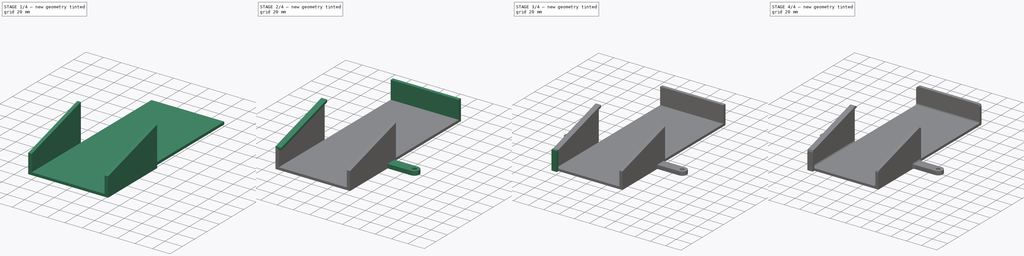
[diagram: build sequence overview — one tinted view per stage of 4, left to right]
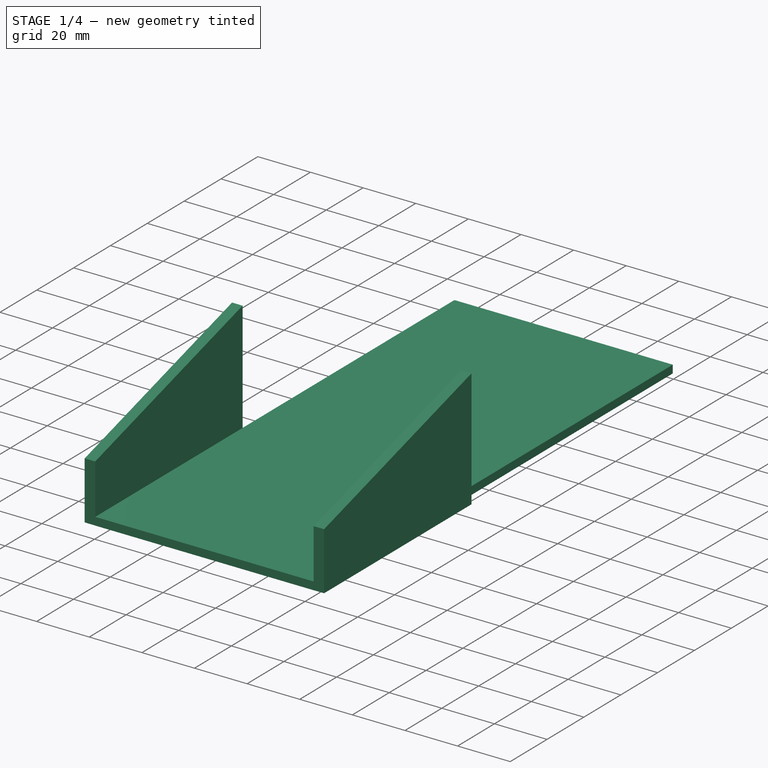
[diagram: stage 1 of 4 — iso view after this stage's code; geometry added in this stage tinted green]
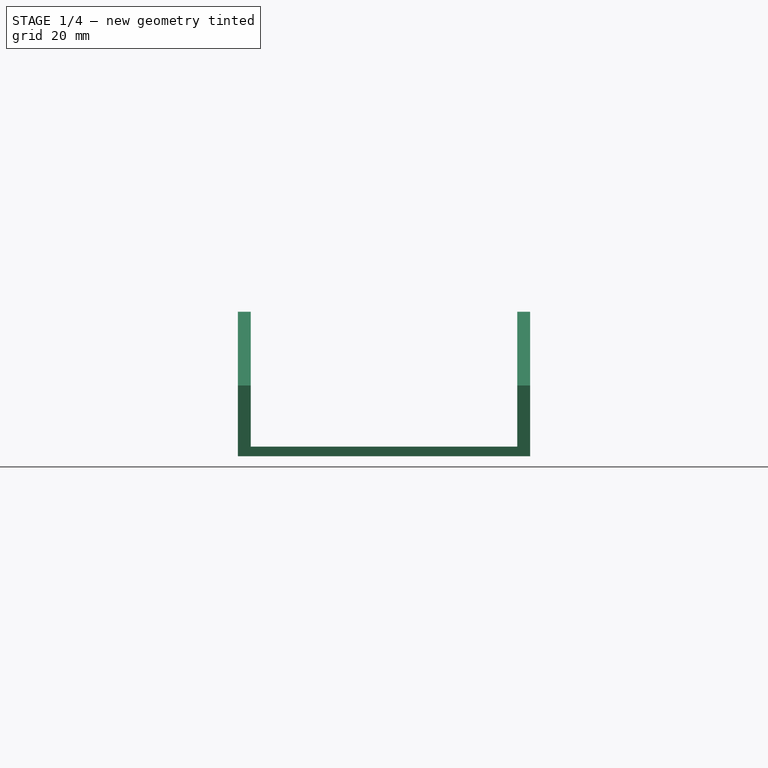
[diagram: stage 1 of 4 — front view after this stage's code; geometry added in this stage tinted green]
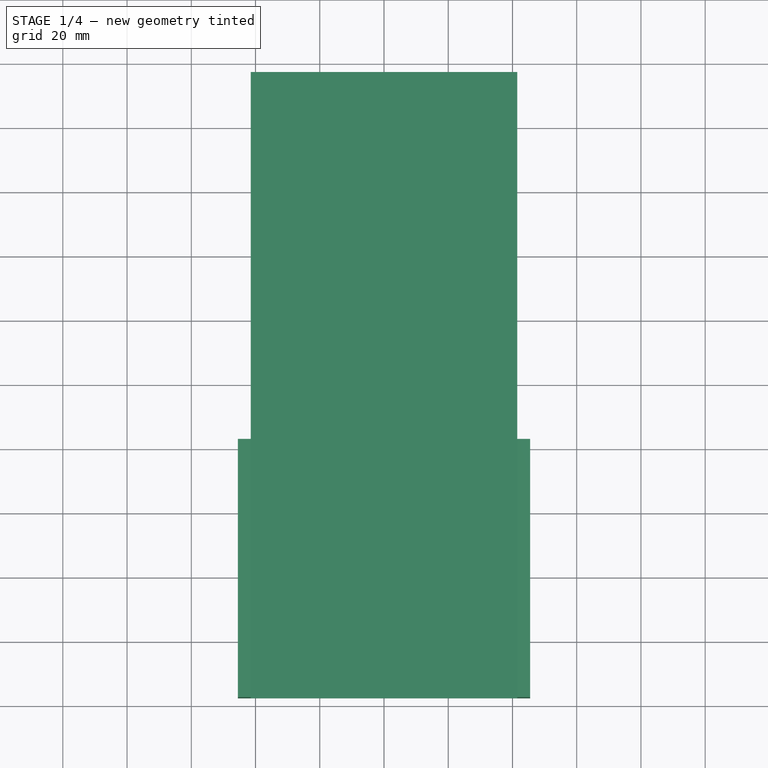
[diagram: stage 1 of 4 — top view after this stage's code; geometry added in this stage tinted green]
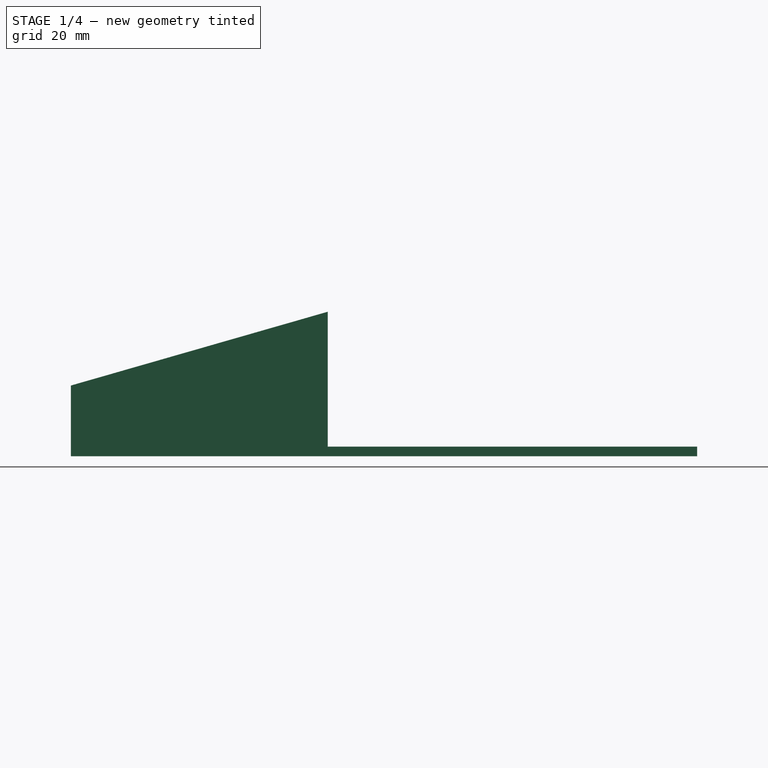
[diagram: stage 1 of 4 — right view after this stage's code; geometry added in this stage tinted green]
FCSTD DOCUMENT  (FreeCAD 1.1R20260414 (Git shallow))
Label: Unnamed
License: All rights reserved
LicenseURL: https://en.wikipedia.org/wiki/All_rights_reserved
objects: Sketcher::SketchObject×6, PartDesign::Pad×6, PartDesign::Fillet×4, PartDesign::Mirrored×2, App::Point×1, PartDesign::Body×1
note: 47 computed .brp shape members not serialized (recipe doc carries the construction recipe); baked Part::Feature solids carry a one-line shape summary decoded from their .brp

FEATURE [App::Point] Origin001
  Role = Origin
FEATURE [Sketcher::SketchObject] Sketch
  ArcFitTolerance = 1e-06
  AttachmentSupport = -> [Origin]
  ExternalTypes = [0]
  FullyConstrained = true
  MakeInternals = false
  MapMode = 5
  _ExternalGeoVersion = 1
  sketch-geometry (5):
    g0: LineSegment StartX=-41.5 StartY=-97.5 StartZ=0 EndX=41.5 EndY=-97.5 EndZ=0
    g1: LineSegment StartX=41.5 StartY=-97.5 StartZ=0 EndX=41.5 EndY=97.5 EndZ=0
    g2: LineSegment StartX=41.5 StartY=97.5 StartZ=0 EndX=-41.5 EndY=97.5 EndZ=0
    g3: LineSegment StartX=-41.5 StartY=97.5 StartZ=0 EndX=-41.5 EndY=-97.5 EndZ=0
    g4: GeomPoint [constr] X=0 Y=0 Z=0
  constraints (12):
    c: Coincident(g0,g1)
    c: Coincident(g1,g2)
    c: Coincident(g2,g3)
    c: Coincident(g3,g0)
    c: Horizontal(g0)
    c: Horizontal(g2)
    c: Vertical(g1)
    c: Vertical(g3)
    c: Symmetric(g2,g0,g4)
    c: Distance(g1,g3) = 83
    c: Distance(g0,g2) = 195
    c: Coincident(g4,g-1)
FEATURE [PartDesign::Pad] Pad
  Direction = (0,0,1)
  Length = 3
  Length2 = 10
  Profile = -> Sketch
  ReferenceAxis = -> Sketch [N_Axis]
  Refine = true
  SideType = 0
  Suppressed = false
  Type = 0
  Type2 = 0
FEATURE [Sketcher::SketchObject] Sketch001
  ArcFitTolerance = 1e-06
  AttachmentSupport = -> [Pad]
  ExternalTypes = [0,0]
  FullyConstrained = true
  MakeInternals = false
  MapMode = 5
  Placement = pos=(-41.5,0,0) rot=(0.57735,-0.57735,-0.57735;2.0944rad)
  _ExternalGeoVersion = 1
  sketch-geometry (4):
    g0: LineSegment StartX=97.5 StartY=0.02 StartZ=0 EndX=97.5 EndY=22.02 EndZ=0
    g1: LineSegment StartX=17.5 StartY=0.02 StartZ=0 EndX=17.5 EndY=45 EndZ=0
    g2: LineSegment StartX=17.5 StartY=45 StartZ=0 EndX=97.5 EndY=22.02 EndZ=0
    g3: LineSegment StartX=17.5 StartY=0.02 StartZ=0 EndX=97.5 EndY=0.02 EndZ=0
  constraints (12):
    c: Distance(g0) = 22
    c: Vertical(g0)
    c: Vertical(g1)
    c: Coincident(g2,g1)
    c: Coincident(g2,g0)
    c: Distance(g0,g-1) = 22.02
    c: Coincident(g3,g1)
    c: Coincident(g3,g0)
    c: Distance(g0,g1) = 80
    c: Distance(g-2,g0) = 97.5
    c: Distance(g1,g-1) = 45
    c: Distance(g1,g1) = 44.98
FEATURE [PartDesign::Pad] Pad001
  BaseFeature = -> Pad
  Direction = (-1,0,0)
  Length = 4
  Length2 = 10
  Profile = -> Sketch001
  ReferenceAxis = -> Sketch001 [N_Axis]
  Refine = true
  SideType = 0
  Suppressed = false
  Type = 0
  Type2 = 0
FEATURE [PartDesign::Mirrored] Mirrored
  BaseFeature = -> Pad001
  MirrorPlane = -> YZ_Plane
  Originals = -> [Pad001]
  Refine = true
  Suppressed = false
  TransformMode = 0
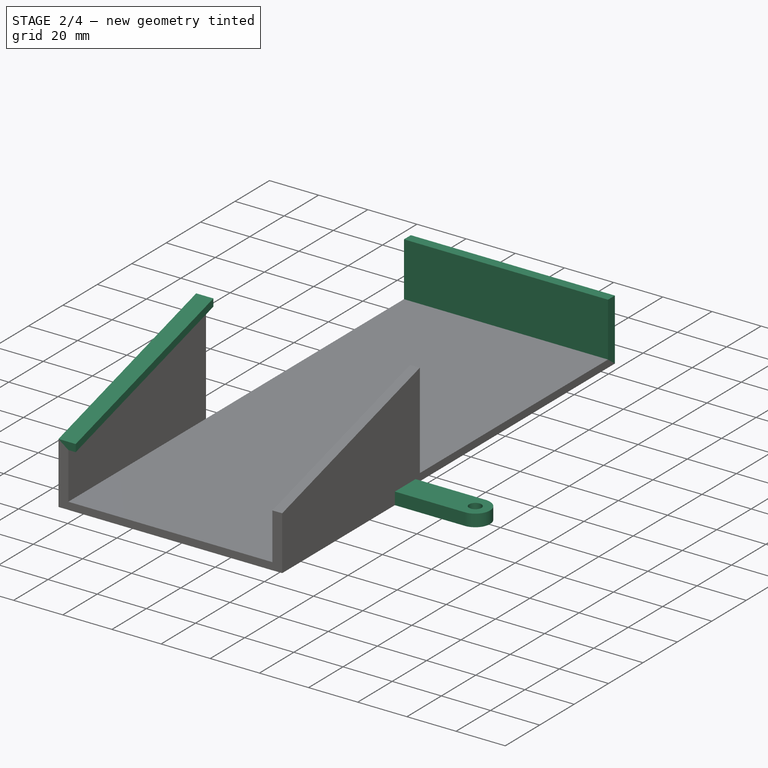
[diagram: stage 2 of 4 — iso view after this stage's code; geometry added in this stage tinted green]
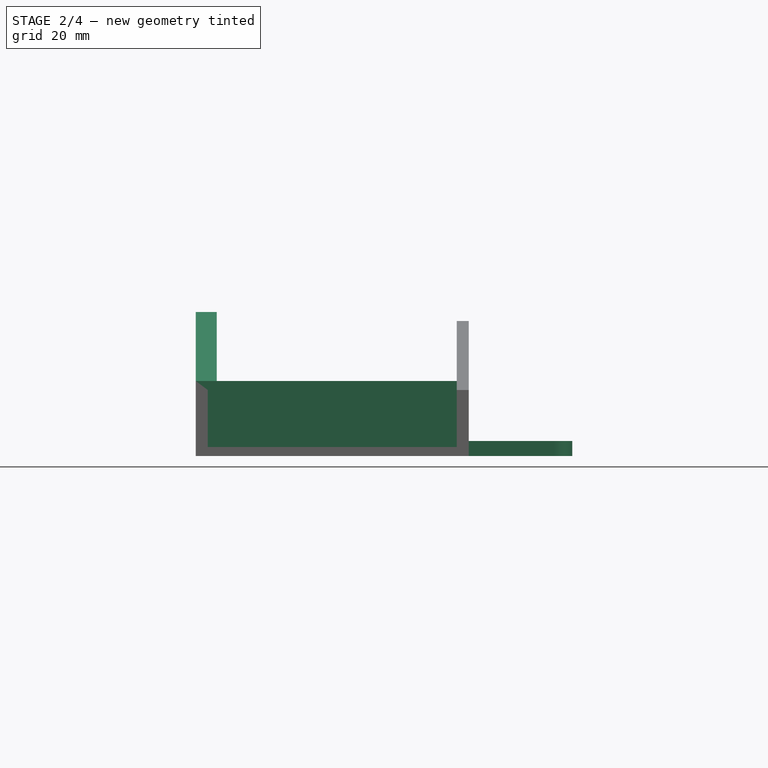
[diagram: stage 2 of 4 — front view after this stage's code; geometry added in this stage tinted green]
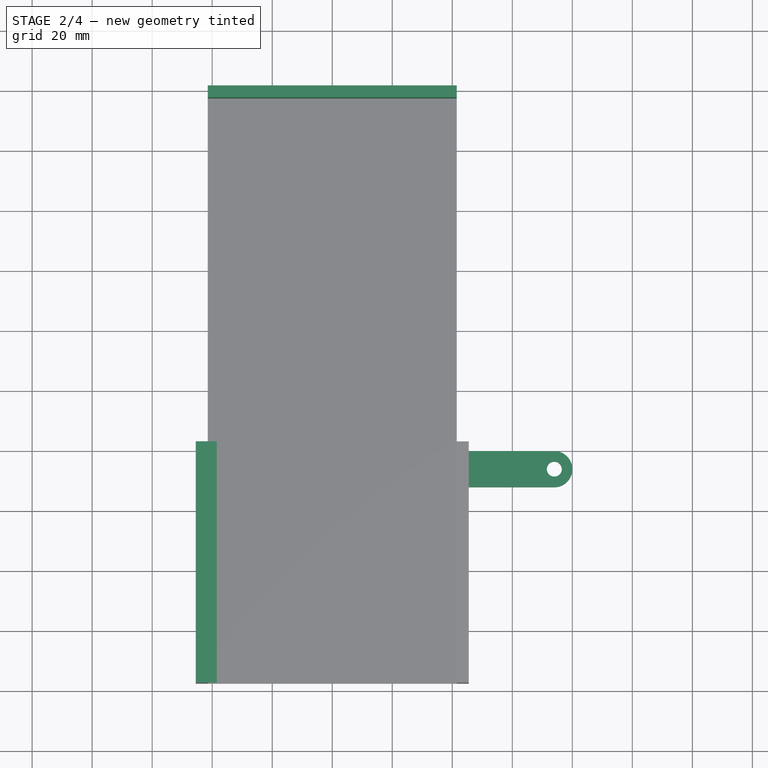
[diagram: stage 2 of 4 — top view after this stage's code; geometry added in this stage tinted green]
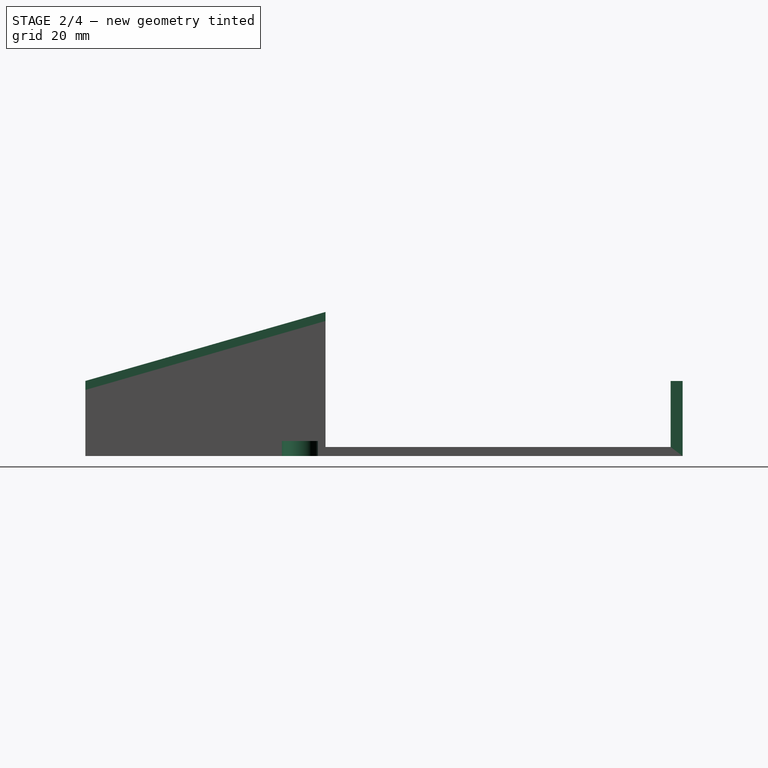
[diagram: stage 2 of 4 — right view after this stage's code; geometry added in this stage tinted green]
FEATURE [Sketcher::SketchObject] Sketch002
  ArcFitTolerance = 1e-06
  AttachmentSupport = -> [Mirrored]
  ExternalTypes = [0,0]
  FullyConstrained = true
  MakeInternals = false
  MapMode = 5
  Placement = pos=(-45.5,0,0) rot=(0.57735,-0.57735,-0.57735;2.0944rad)
  _ExternalGeoVersion = 1
  sketch-geometry (4):
    g0: LineSegment StartX=97.5 StartY=22.02 StartZ=0 EndX=97.5 EndY=25.02 EndZ=0
    g1: LineSegment StartX=17.5 StartY=45 StartZ=0 EndX=17.5 EndY=48 EndZ=0
    g2: LineSegment StartX=17.5 StartY=48 StartZ=0 EndX=97.5 EndY=25.02 EndZ=0
    g3: LineSegment StartX=97.5 StartY=22.02 StartZ=0 EndX=17.5 EndY=45 EndZ=0
  constraints (12):
    c: Vertical(g1)
    c: Coincident(g1,g2)
    c: Coincident(g2,g0)
    c: Coincident(g0,g3)
    c: Coincident(g3,g1)
    c: Vertical(g0)
    c: Distance(g1,g1) = 3
    c: Distance(g0,g0) = 3
    c: DistanceY(g-1,g1) = 45
    c: DistanceY(g-1,g0) = 22.02
    c: Distance(g0,g-2) = 97.5
    c: DistanceX(g1,g0) = 80
FEATURE [PartDesign::Pad] Pad002
  BaseFeature = -> Mirrored
  Direction = (-1,0,0)
  Length = 7
  Length2 = 10
  Profile = -> Sketch002
  ReferenceAxis = -> Sketch002 [N_Axis]
  Refine = true
  Reversed = true
  SideType = 0
  Suppressed = false
  Type = 0
  Type2 = 0
FEATURE [Sketcher::SketchObject] Sketch003
  ArcFitTolerance = 1e-06
  AttachmentSupport = -> [Pad002]
  ExternalTypes = [0]
  FullyConstrained = true
  MakeInternals = false
  MapMode = 5
  Placement = pos=(0,97.5,0) rot=(0,0.707107,0.707107;3.14159rad)
  _ExternalGeoVersion = 1
  sketch-geometry (4):
    g0: LineSegment StartX=-41.5 StartY=-1.4e-15 StartZ=0 EndX=41.5 EndY=-1.4e-15 EndZ=0
    g1: LineSegment StartX=41.5 StartY=-1.4e-15 StartZ=0 EndX=41.5 EndY=25 EndZ=0
    g2: LineSegment StartX=41.5 StartY=25 StartZ=0 EndX=-41.5 EndY=25 EndZ=0
    g3: LineSegment StartX=-41.5 StartY=-1.4e-15 StartZ=0 EndX=-41.5 EndY=25 EndZ=0
  constraints (12):
    c: Coincident(g0,g1)
    c: Coincident(g1,g2)
    c: Vertical(g1)
    c: Horizontal(g0)
    c: Horizontal(g2)
    c: Distance(g2,g1) = 83
    c: Distance(g0,g2) = 25
    c: Coincident(g3,g0)
    c: Coincident(g3,g2)
    c: Vertical(g3)
    c: Distance(g-2,g3) = 41.5
    c: Distance(g-1,g2) = 25
FEATURE [PartDesign::Pad] Pad003
  BaseFeature = -> Pad002
  Direction = (0,1,-2e-16)
  Length = 4
  Length2 = 10
  Profile = -> Sketch003
  ReferenceAxis = -> Sketch003 [N_Axis]
  Refine = true
  SideType = 0
  Suppressed = false
  Type = 0
  Type2 = 0
FEATURE [Sketcher::SketchObject] Sketch005
  ArcFitTolerance = 1e-06
  AttachmentSupport = -> [Origin]
  ExternalTypes = [0]
  FullyConstrained = true
  MakeInternals = false
  MapMode = 5
  _ExternalGeoVersion = 1
  sketch-geometry (5):
    g0: LineSegment StartX=44 StartY=-20.02 StartZ=0 EndX=44 EndY=-32.02 EndZ=0
    g1: LineSegment StartX=44 StartY=-32.02 StartZ=0 EndX=74 EndY=-32.02 EndZ=0
    g2: LineSegment StartX=74 StartY=-20.02 StartZ=0 EndX=44 EndY=-20.02 EndZ=0
    g3: ArcOfCircle CenterX=74 CenterY=-26.02 CenterZ=0 NormalX=0 NormalY=0 NormalZ=1 AngleXU=0 Radius=6 StartAngle=4.71239 EndAngle=7.85398
    g4: Circle CenterX=74 CenterY=-26.02 CenterZ=0 NormalX=0 NormalY=0 NormalZ=1 AngleXU=0 Radius=2.5
  constraints (14):
    c: Coincident(g0,g1)
    c: Coincident(g2,g0)
    c: Vertical(g0)
    c: Horizontal(g1)
    c: Horizontal(g2)
    c: Distance(g0,g2) = 30
    c: Distance(g1,g2) = 12
    c: Distance(g-2,g0) = 44
    c: Tangent(g1,g3) = -1.5708
    c: Coincident(g3,g2)
    c: Angle(g3) = 3.14159
    c: Diameter(g4) = 5
    c: Coincident(g4,g3)
    c: Distance(g-1,g2) = 20.02
FEATURE [PartDesign::Pad] Pad005
  BaseFeature = -> Pad003
  Direction = (0,0,1)
  Length = 5
  Length2 = 10
  Profile = -> Sketch005
  ReferenceAxis = -> Sketch005 [N_Axis]
  Refine = true
  SideType = 0
  Suppressed = false
  Type = 0
  Type2 = 0
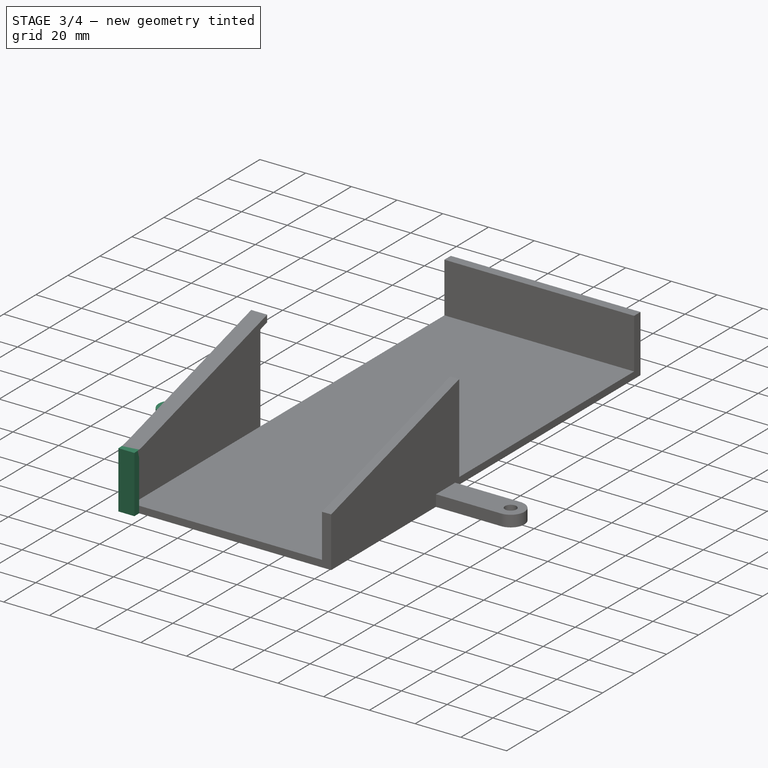
[diagram: stage 3 of 4 — iso view after this stage's code; geometry added in this stage tinted green]
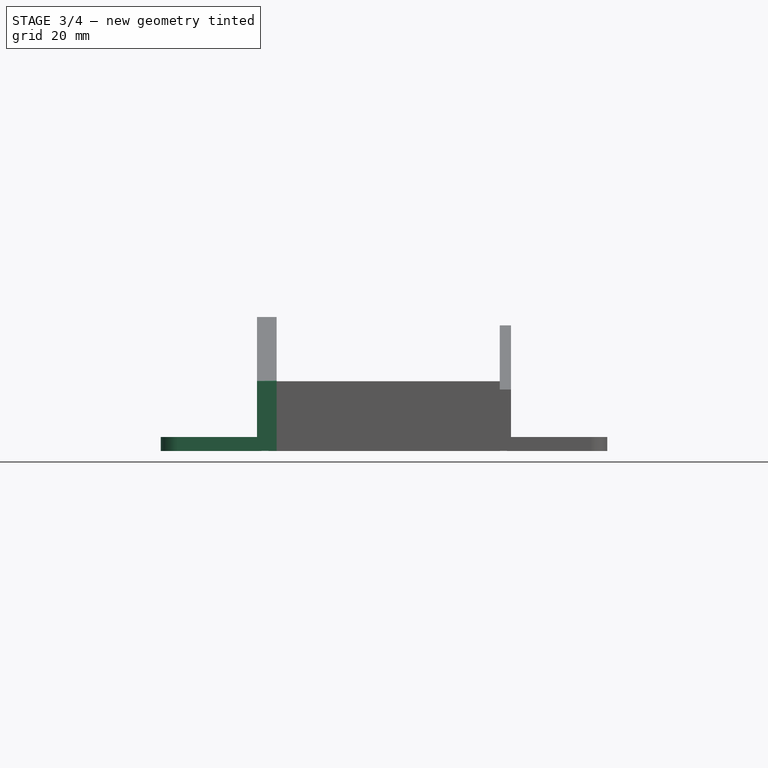
[diagram: stage 3 of 4 — front view after this stage's code; geometry added in this stage tinted green]
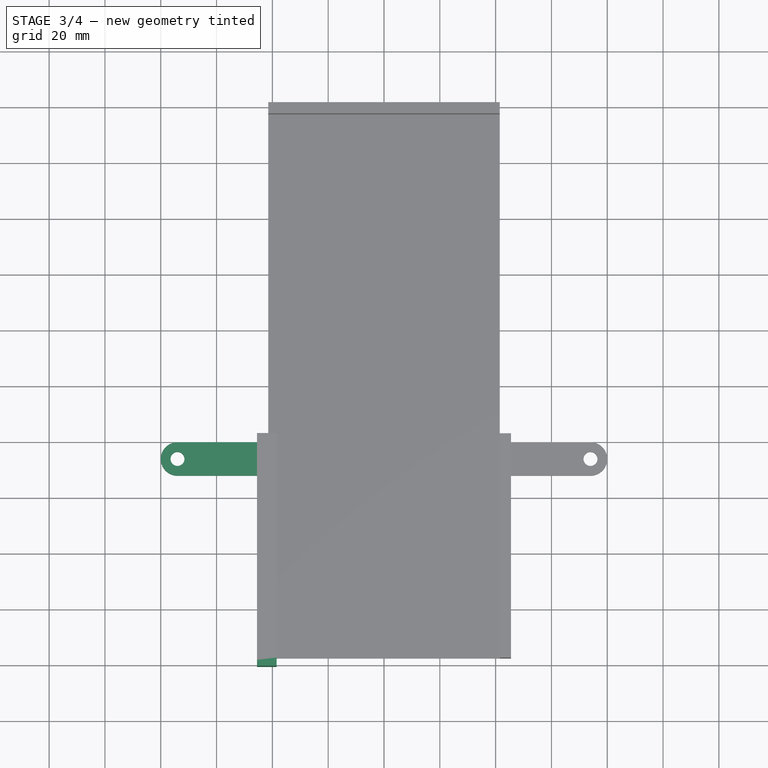
[diagram: stage 3 of 4 — top view after this stage's code; geometry added in this stage tinted green]
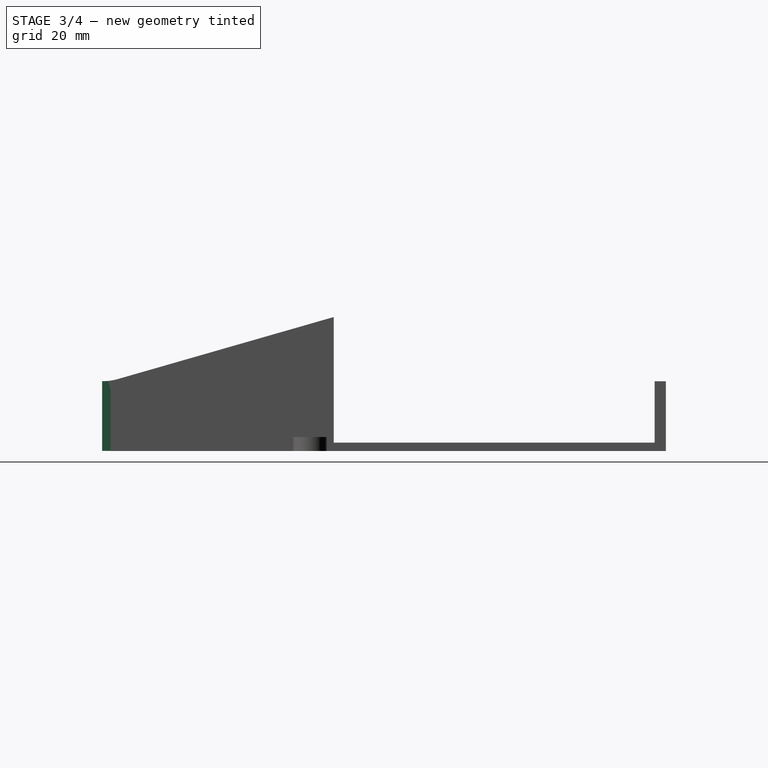
[diagram: stage 3 of 4 — right view after this stage's code; geometry added in this stage tinted green]
FEATURE [PartDesign::Mirrored] Mirrored001
  BaseFeature = -> Pad005
  MirrorPlane = -> Sketch005 [V_Axis]
  Originals = -> [Pad005]
  Refine = true
  Suppressed = false
  TransformMode = 0
FEATURE [Sketcher::SketchObject] Sketch006
  ArcFitTolerance = 1e-06
  AttachmentSupport = -> [Pad003]
  ExternalTypes = [0]
  FullyConstrained = true
  MakeInternals = false
  MapMode = 5
  Placement = pos=(0,-97.5,-5.11e-14) rot=(1,0,0;1.5708rad)
  _ExternalGeoVersion = 1
  sketch-geometry (4):
    g0: LineSegment StartX=-45.5 StartY=25.02 StartZ=0 EndX=-45.5 EndY=0.02 EndZ=0
    g1: LineSegment StartX=-45.5 StartY=0.02 StartZ=0 EndX=-38.5 EndY=0.02 EndZ=0
    g2: LineSegment StartX=-38.5 StartY=0.02 StartZ=0 EndX=-38.5 EndY=25.02 EndZ=0
    g3: LineSegment StartX=-38.5 StartY=25.02 StartZ=0 EndX=-45.5 EndY=25.02 EndZ=0
  constraints (12):
    c: Coincident(g0,g1)
    c: Coincident(g1,g2)
    c: Coincident(g2,g3)
    c: Coincident(g3,g0)
    c: Vertical(g0)
    c: Vertical(g2)
    c: Horizontal(g1)
    c: Horizontal(g3)
    c: Distance(g0,g2) = 7
    c: Distance(g1,g3) = 25
    c: Distance(g-1,g3) = 25.02
    c: Distance(g-2,g0) = 45.5
FEATURE [PartDesign::Pad] Pad006
  BaseFeature = -> Mirrored001
  Direction = (0,-1,2e-16)
  Length = 3
  Length2 = 10
  Profile = -> Sketch006
  ReferenceAxis = -> Sketch006 [N_Axis]
  Refine = true
  SideType = 0
  Suppressed = false
  Type = 0
  Type2 = 0
FEATURE [PartDesign::Fillet] Fillet
  Base = -> Pad006 [Edge2]
  BaseFeature = -> Pad006
  Radius = 19
  Refine = true
  SupportTransform = false
  Suppressed = false
  UseAllEdges = false
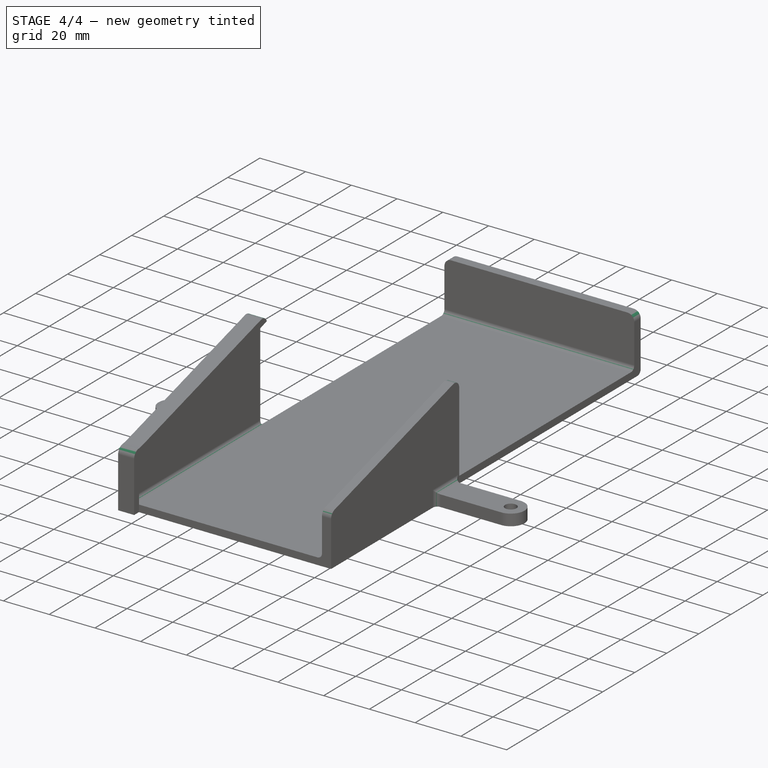
[diagram: stage 4 of 4 — iso view after this stage's code; geometry added in this stage tinted green]
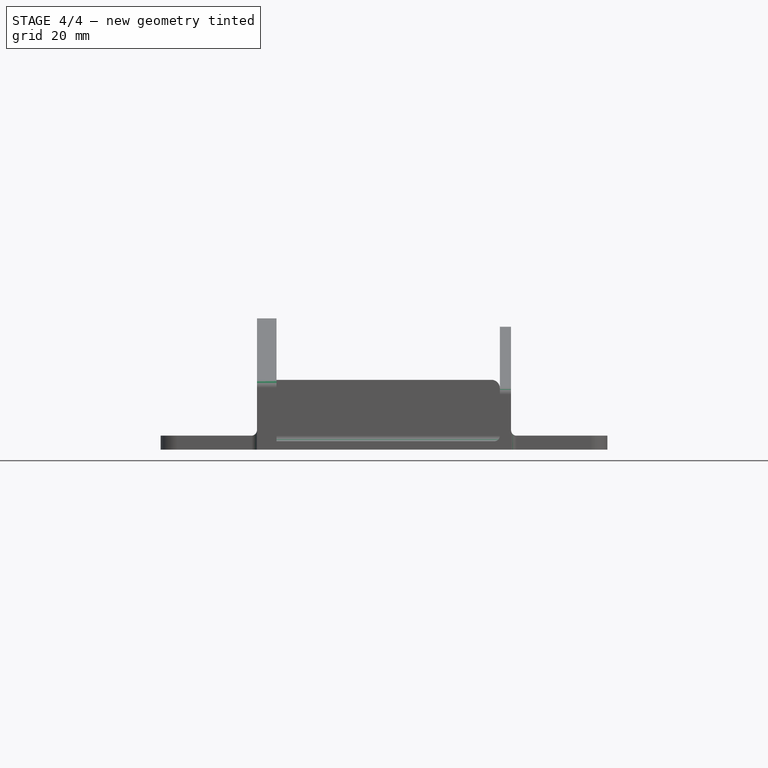
[diagram: stage 4 of 4 — front view after this stage's code; geometry added in this stage tinted green]
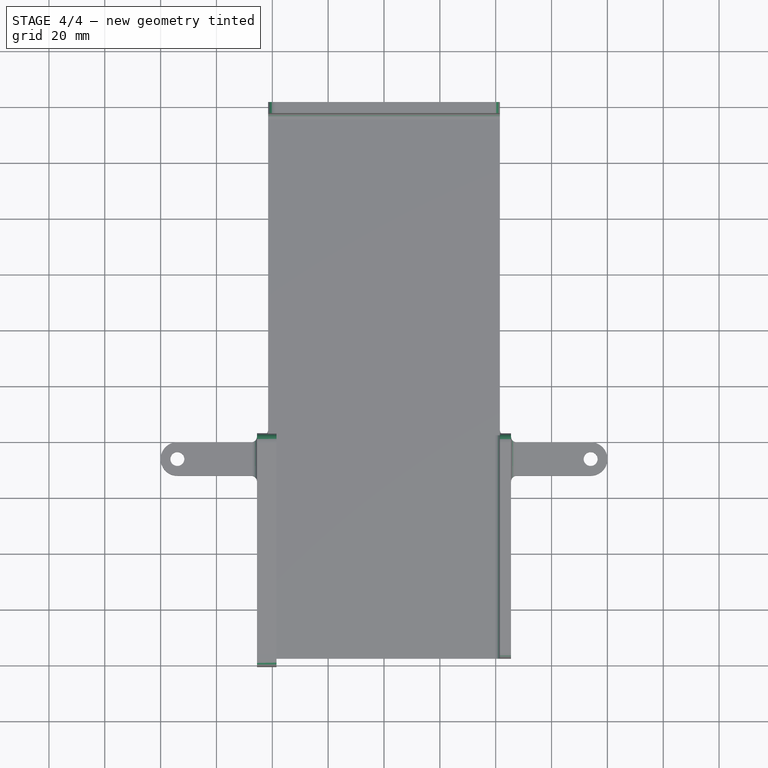
[diagram: stage 4 of 4 — top view after this stage's code; geometry added in this stage tinted green]
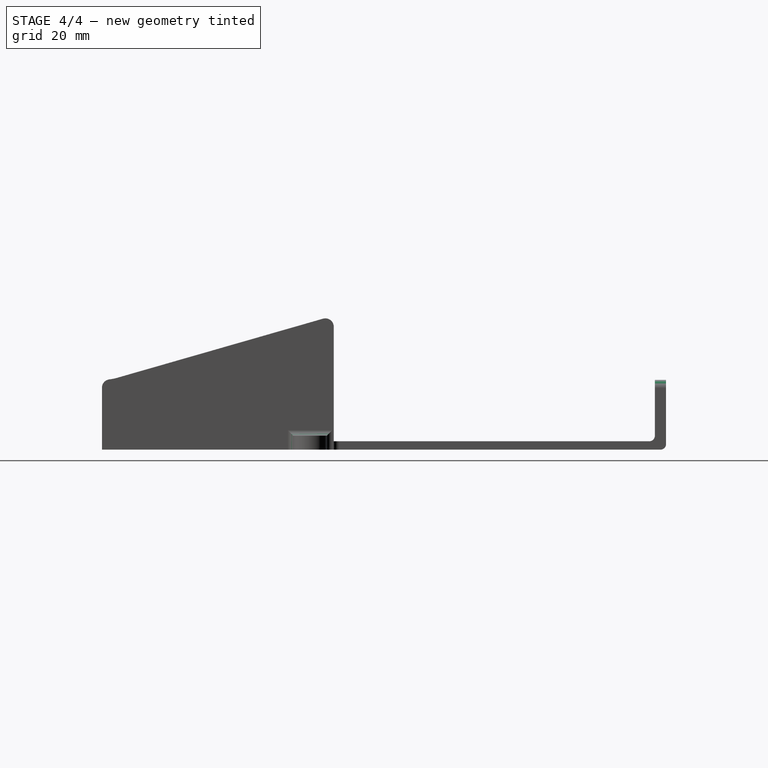
[diagram: stage 4 of 4 — right view after this stage's code; geometry added in this stage tinted green]
FEATURE [PartDesign::Fillet] Fillet001
  Base = -> Fillet [Edge27,Edge57,Edge78,Edge3,Edge71,Edge51]
  BaseFeature = -> Fillet
  Radius = 3
  Refine = true
  SupportTransform = false
  Suppressed = false
  UseAllEdges = false
FEATURE [PartDesign::Fillet] Fillet002
  Base = -> Fillet001 [Edge50,Edge71,Edge69,Edge96]
  BaseFeature = -> Fillet001
  Radius = 2
  Refine = true
  SupportTransform = false
  Suppressed = false
  UseAllEdges = false
FEATURE [PartDesign::Fillet] Fillet003
  Base = -> Fillet002 [Edge111,Edge69,Edge108,Edge110,Edge33,Edge30,Edge32,Edge6]
  BaseFeature = -> Fillet002
  Radius = 2
  Refine = true
  SupportTransform = false
  Suppressed = false
  UseAllEdges = false
FEATURE [PartDesign::Body] Body
  AllowCompound = true
  Group = -> [Sketch,Pad,Sketch001,Pad001,Mirrored,Sketch002,Pad002,Sketch003,Pad003,Sketch005,Pad005,Mirrored001,Sketch006,Pad006,Fillet,Fillet001,Fillet002,Fillet003]
  Origin = -> Origin
  Placement = pos=(147,106,2) rot=(0,0,1;0rad)
  Tip = -> Fillet003
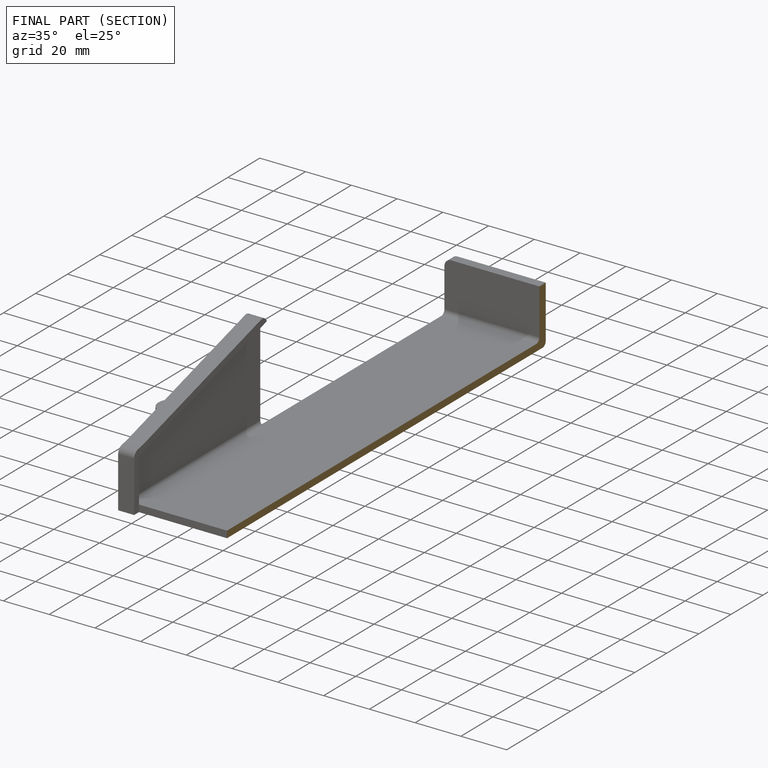
[diagram: finished part — half-section view (interior)]
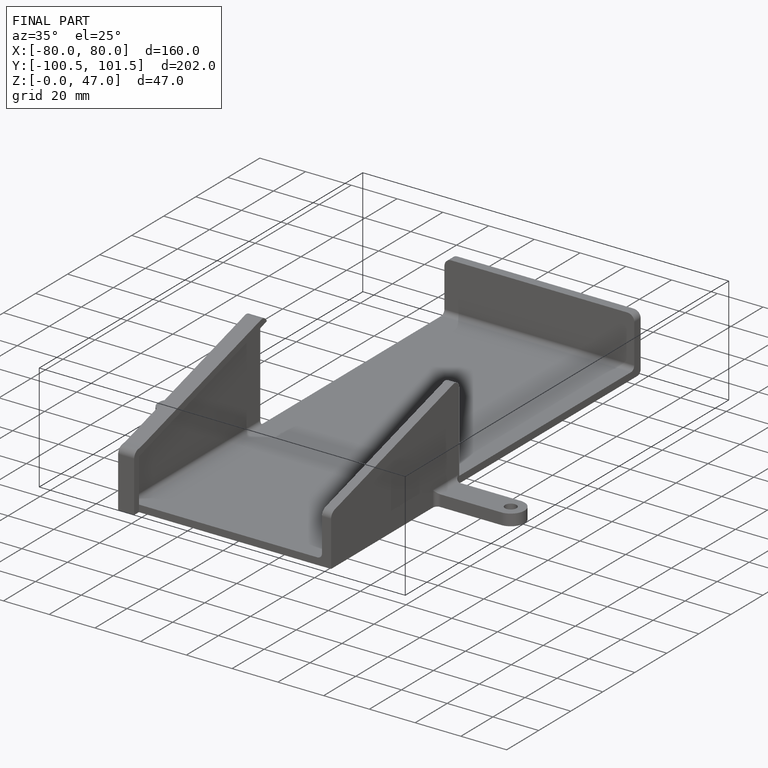
[diagram: finished part — iso view with bounding-box wireframe]
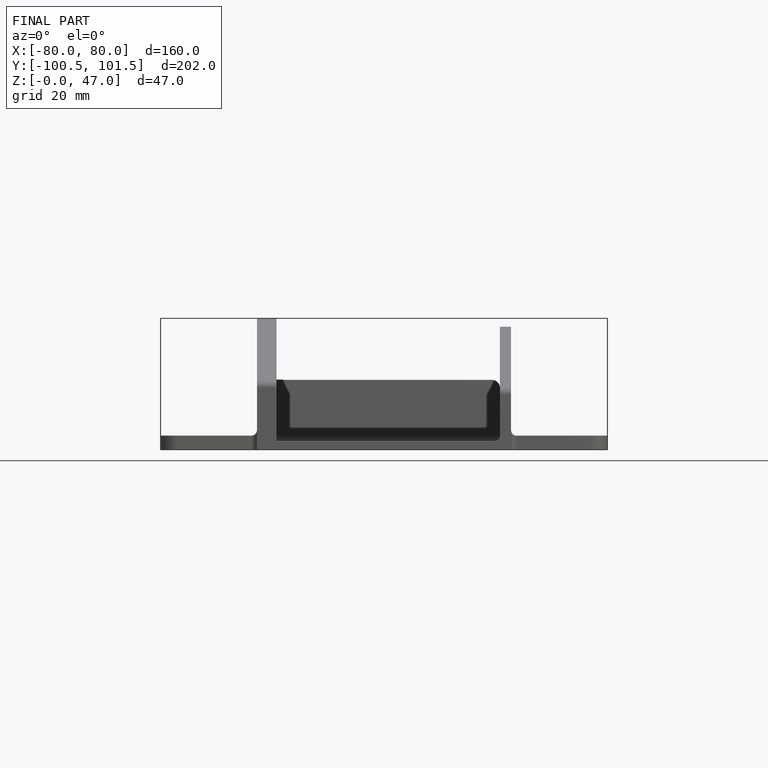
[diagram: finished part — front view with bounding-box wireframe]
